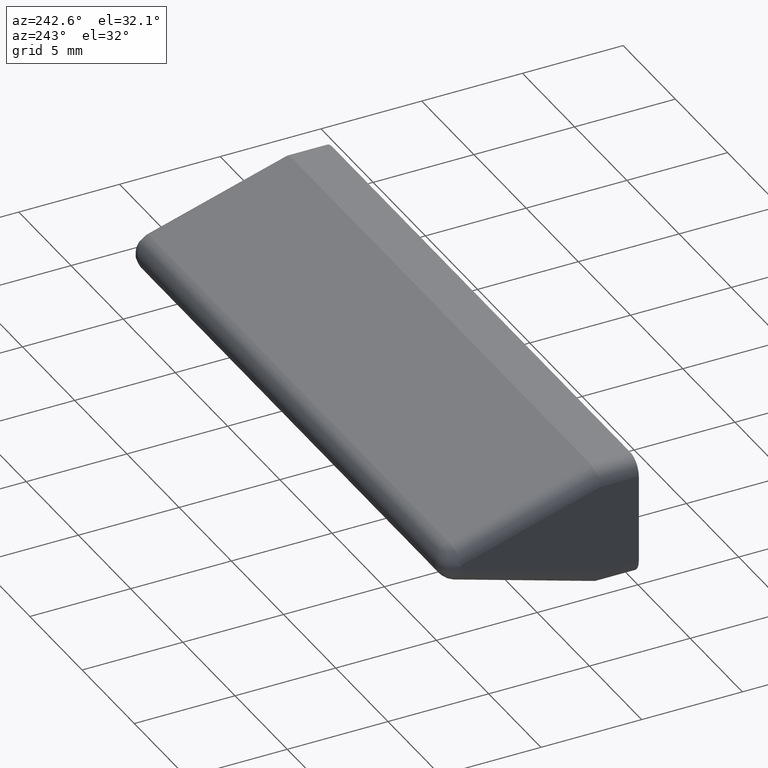
[diagram: clean part render]
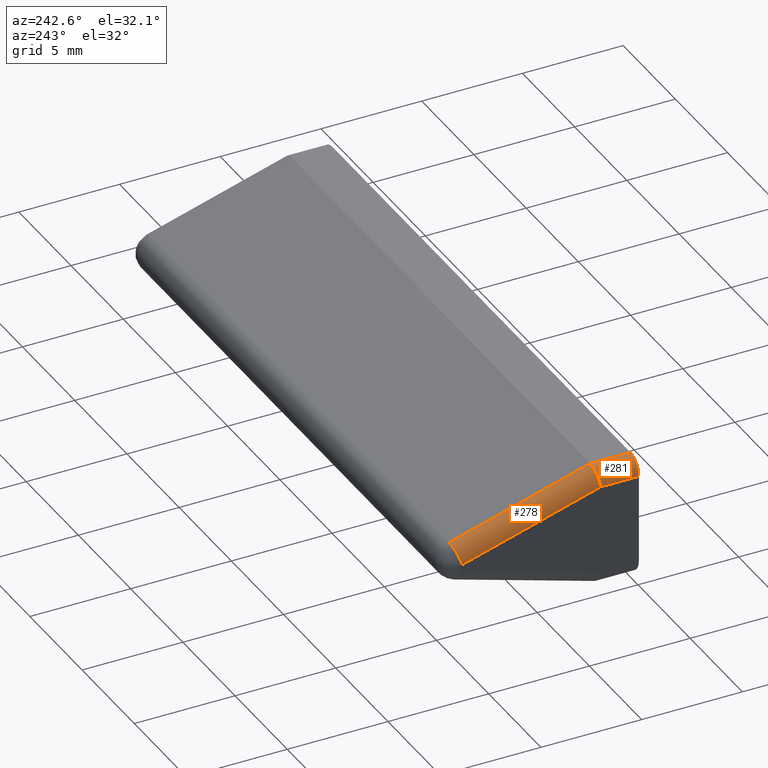
[diagram: same view with one multi-face feature highlighted, each face labeled with its STEP entity id]
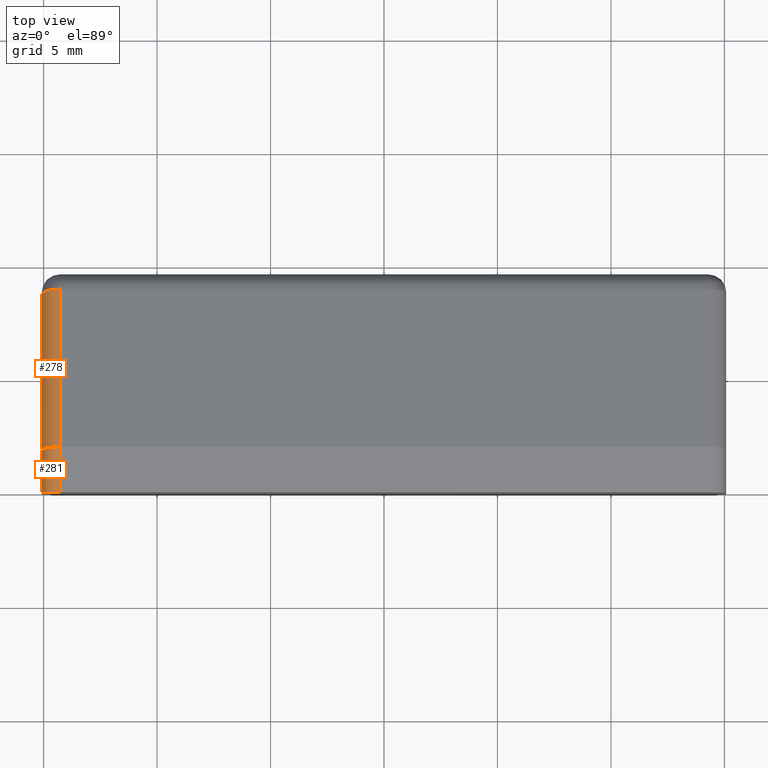
[diagram: same view with one multi-face feature highlighted, each face labeled with its STEP entity id]
A machine part, auxiliary view. The highlighted faces form ONE feature: a constant-radius fillet chain: 2 tangent blend faces with common blend radius 0.8 mm. The faces share edges in the B-rep.
A second angle (top view) of the same feature is appended — it is thin or edge-on in the first view.
Their STEP definitions:
[1] entity #278 (Cylinder):
#25=FACE_OUTER_BOUND('',#43,.T.);
#43=EDGE_LOOP('',(#192,#193,#194,#195));
#61=ELLIPSE('',#323,0.808591141618024,0.8);
#65=CIRCLE('',#322,0.8);
#78=LINE('',#453,#102);
#79=LINE('',#457,#103);
#102=VECTOR('',#362,10.);
#103=VECTOR('',#365,10.);
#128=VERTEX_POINT('',#451);
#129=VERTEX_POINT('',#452);
#130=VERTEX_POINT('',#454);
#131=VERTEX_POINT('',#456);
#152=EDGE_CURVE('',#128,#129,#78,.T.);
#153=EDGE_CURVE('',#129,#130,#65,.T.);
#154=EDGE_CURVE('',#130,#131,#79,.T.);
#155=EDGE_CURVE('',#131,#128,#61,.T.);
#192=ORIENTED_EDGE('',*,*,#152,.T.);
#193=ORIENTED_EDGE('',*,*,#153,.T.);
#194=ORIENTED_EDGE('',*,*,#154,.T.);
#195=ORIENTED_EDGE('',*,*,#155,.T.);
#269=CYLINDRICAL_SURFACE('',#321,0.8);
#278=ADVANCED_FACE('',(#25),#269,.T.);
#321=AXIS2_PLACEMENT_3D('',#450,#360,#361);
#322=AXIS2_PLACEMENT_3D('',#455,#363,#364);
#323=AXIS2_PLACEMENT_3D('',#458,#366,#367);
#360=DIRECTION('center_axis',(0.,0.95772646284057,-0.287680417086199));
#361=DIRECTION('ref_axis',(-0.707106781186548,0.203420773736226,0.677214876396373));
#362=DIRECTION('',(0.,0.95772646284057,-0.287680417086199));
#363=DIRECTION('center_axis',(0.,-0.957726462840571,0.287680417086199));
#364=DIRECTION('ref_axis',(0.,0.287680417086199,0.957726462840571));
#365=DIRECTION('',(0.,-0.95772646284057,0.287680417086199));
#366=DIRECTION('center_axis',(0.,0.989375172227546,-0.145384898045548));
#367=DIRECTION('ref_axis',(0.,0.145384898045548,0.989375172227546));
#450=CARTESIAN_POINT('Origin',(-14.28,6.98386195733329,0.670647341415071));
#451=CARTESIAN_POINT('',(-14.28,2.00999999999999,3.));
#452=CARTESIAN_POINT('',(-14.28,9.00030483173816,0.900262875070134));
#453=CARTESIAN_POINT('',(-14.28,7.21400629100225,1.43682851168753));
#454=CARTESIAN_POINT('',(-15.08,8.7701604980692,0.134081704797678));
#455=CARTESIAN_POINT('Origin',(-14.28,8.7701604980692,0.134081704797678));
#456=CARTESIAN_POINT('',(-15.08,1.89244305931532,2.2));
#457=CARTESIAN_POINT('',(-15.08,6.98386195733329,0.670647341415071));
#458=CARTESIAN_POINT('Origin',(-14.28,1.89244305931532,2.2));
[2] entity #281 (Cylinder):
#28=FACE_OUTER_BOUND('',#46,.T.);
#46=EDGE_LOOP('',(#204,#205,#206,#207));
#61=ELLIPSE('',#323,0.808591141618024,0.8);
#69=CIRCLE('',#329,0.8);
#82=LINE('',#484,#106);
#83=LINE('',#487,#107);
#106=VECTOR('',#380,10.);
#107=VECTOR('',#383,10.);
#128=VERTEX_POINT('',#451);
#131=VERTEX_POINT('',#456);
#134=VERTEX_POINT('',#483);
#135=VERTEX_POINT('',#485);
#155=EDGE_CURVE('',#131,#128,#61,.T.);
#161=EDGE_CURVE('',#131,#134,#82,.T.);
#162=EDGE_CURVE('',#134,#135,#69,.T.);
#163=EDGE_CURVE('',#135,#128,#83,.T.);
#204=ORIENTED_EDGE('',*,*,#161,.T.);
#205=ORIENTED_EDGE('',*,*,#162,.T.);
#206=ORIENTED_EDGE('',*,*,#163,.T.);
#207=ORIENTED_EDGE('',*,*,#155,.F.);
#271=CYLINDRICAL_SURFACE('',#328,0.8);
#281=ADVANCED_FACE('',(#28),#271,.T.);
#323=AXIS2_PLACEMENT_3D('',#458,#366,#367);
#328=AXIS2_PLACEMENT_3D('',#482,#378,#379);
#329=AXIS2_PLACEMENT_3D('',#486,#381,#382);
#366=DIRECTION('center_axis',(0.,0.989375172227546,-0.145384898045548));
#367=DIRECTION('ref_axis',(0.,0.145384898045548,0.989375172227546));
#378=DIRECTION('center_axis',(0.,1.,0.));
#379=DIRECTION('ref_axis',(-0.707106781186548,0.,0.707106781186547));
#380=DIRECTION('',(0.,-1.,0.));
#381=DIRECTION('center_axis',(0.,1.,0.));
#382=DIRECTION('ref_axis',(-0.707106781186548,0.,0.707106781186547));
#383=DIRECTION('',(0.,1.,0.));
#451=CARTESIAN_POINT('',(-14.28,2.00999999999999,3.));
#456=CARTESIAN_POINT('',(-15.08,1.89244305931532,2.2));
#458=CARTESIAN_POINT('Origin',(-14.28,1.89244305931532,2.2));
#482=CARTESIAN_POINT('Origin',(-14.28,3.42247130991928,2.2));
#483=CARTESIAN_POINT('',(-15.08,0.,2.2));
#484=CARTESIAN_POINT('',(-15.08,3.42247130991928,2.2));
#485=CARTESIAN_POINT('',(-14.28,0.,3.));
#486=CARTESIAN_POINT('Origin',(-14.28,0.,2.2));
#487=CARTESIAN_POINT('',(-14.28,3.42247130991928,3.));